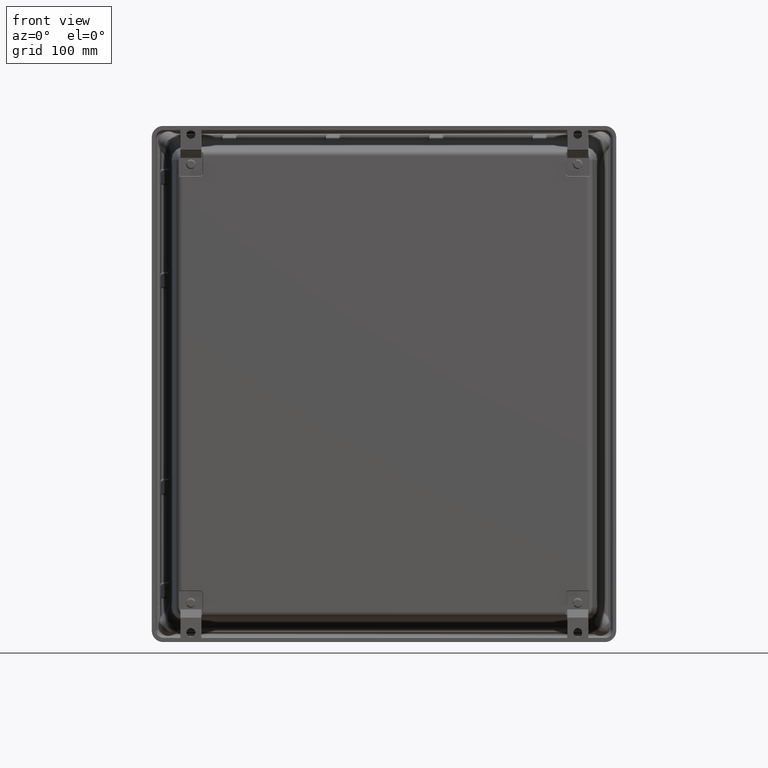
[diagram: clean part render]
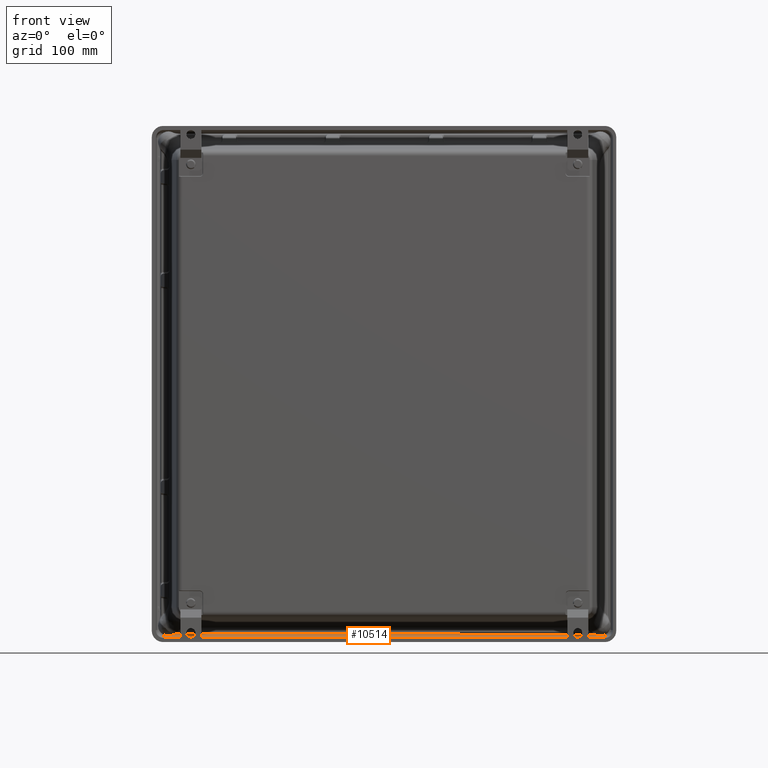
[diagram: same view with one face highlighted and labeled with its STEP entity id]
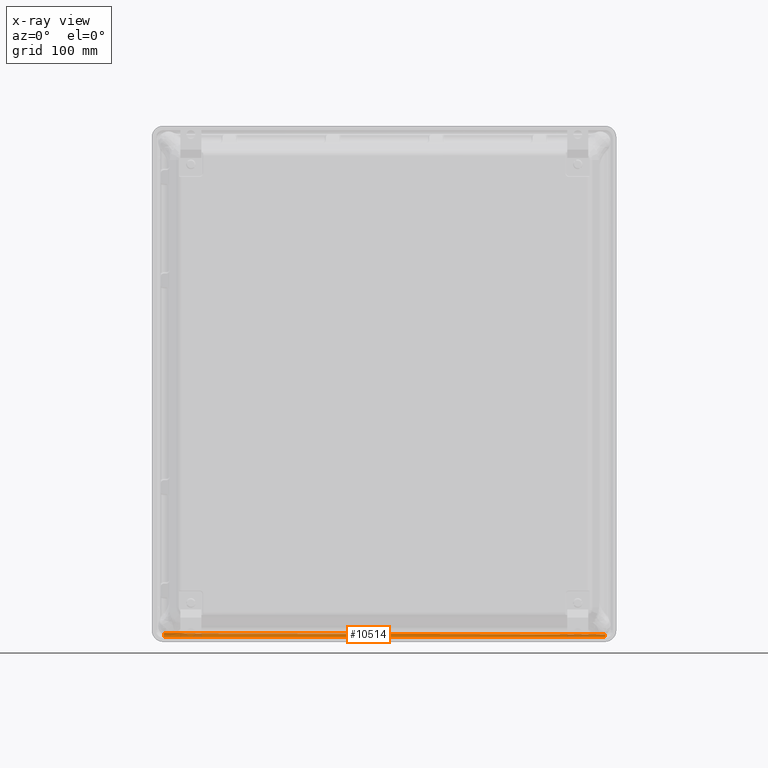
[diagram: x-ray of the same camera — body ghosted, the highlighted face saturated]
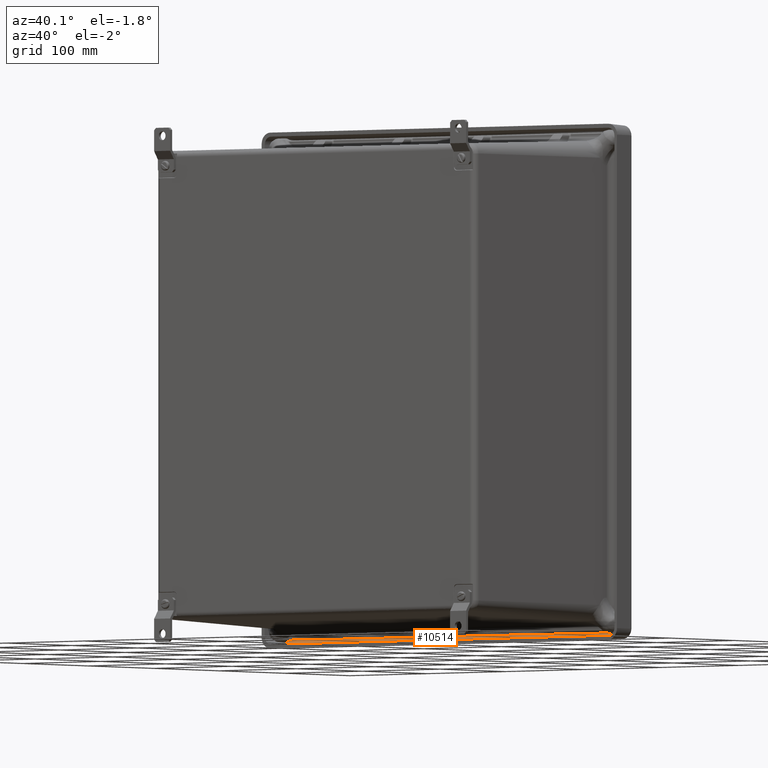
[diagram: same view with one face highlighted and labeled with its STEP entity id]
A machine part, front view. The second image highlights one B-rep face of the part: STEP entity #10514.
The next image is the same camera in x-ray: the body ghosted, the highlighted face saturated — about 7% of this face is hidden behind the body in this view.
A second angle (auxiliary view) of the same face is appended — the face is thin or edge-on in the first view.
In plain terms, the highlighted face is a freeform B-spline surface patch.
Its self-contained STEP definition (entity closure, byte-faithful):
#437 = CARTESIAN_POINT ( 'NONE',  ( 9.674721579208087600, -0.8733507263974081800, 7.163898185940192700 ) ) ;
#589 = CARTESIAN_POINT ( 'NONE',  ( 9.679666458007757200, -0.8743044704430864600, 3.030568104391742500 ) ) ;
#749 = CARTESIAN_POINT ( 'NONE',  ( 9.688845025283518100, -0.8749999591452020100, -1.504734751207767100 ) ) ;
#783 =( BOUNDED_SURFACE ( )  B_SPLINE_SURFACE ( 2, 3, ( 
 ( #19395, #30960, #45918, #23654 ),
 ( #1427, #27375, #5148, #31120 ),
 ( #8854, #34841, #12563, #38591 ) ),
 .UNSPECIFIED., .F., .F., .F. ) 
 B_SPLINE_SURFACE_WITH_KNOTS ( ( 3, 3 ),
 ( 4, 4 ),
 ( 0.0000000000000000000, 1.000000000000000000 ),
 ( 0.0000000000000000000, 1.000000000000000000 ),
 .UNSPECIFIED. ) 
 GEOMETRIC_REPRESENTATION_ITEM ( )  RATIONAL_B_SPLINE_SURFACE ( (
 ( 1.000000000000000000, 1.000000000000000000, 1.000000000000000000, 1.000000000000000000),
 ( 0.7253743710122877400, 0.7253743710122877400, 0.7253743710122877400, 0.7253743710122877400),
 ( 1.000000000000000000, 1.000000000000000000, 1.000000000000000000, 1.000000000000000000) ) ) 
 REPRESENTATION_ITEM ( '' )  SURFACE ( )  );
#1427 = CARTESIAN_POINT ( 'NONE',  ( 9.799143193127333600, -0.8749999999999997800, 8.532999999999987000 ) ) ;
#1811 = EDGE_CURVE ( 'NONE', #23958, #37862, #43674, .T. ) ;
#2136 = CARTESIAN_POINT ( 'NONE',  ( 9.710889488422854000, -0.8750000000000000000, -8.562999999999998800 ) ) ;
#2155 = CARTESIAN_POINT ( 'NONE',  ( 9.651395259702868000, -0.8750000000000000000, 7.835362064465877900 ) ) ;
#2173 = CARTESIAN_POINT ( 'NONE',  ( 9.688927230313172600, -0.8750000000000000000, -1.543071806843368900 ) ) ;
#2238 = CARTESIAN_POINT ( 'NONE',  ( 9.806890928141529100, -0.7271644091738989100, 8.532999999999995900 ) ) ;
#3557 = AXIS2_PLACEMENT_3D ( 'NONE', #16792, #42832, #20523 ) ;
#4161 = CARTESIAN_POINT ( 'NONE',  ( 9.675023764654836700, -0.8734213244040799400, 6.667898277114272100 ) ) ;
#4327 = CARTESIAN_POINT ( 'NONE',  ( 9.680841342050026600, -0.8744737418496132400, 2.369235831555447800 ) ) ;
#4483 = CARTESIAN_POINT ( 'NONE',  ( 9.688927230313172600, -0.8750000000000000000, -1.543071806843368900 ) ) ;
#5148 = CARTESIAN_POINT ( 'NONE',  ( 9.799143193127337200, -0.8749999999999997800, -2.864333333333335400 ) ) ;
#5710 = CARTESIAN_POINT ( 'NONE',  ( 9.651395259702868000, -0.8750000000000000000, 7.835362064465877900 ) ) ;
#6026 = CARTESIAN_POINT ( 'NONE',  ( 9.664802725234903100, -0.8744748197506325700, 7.763722118985570300 ) ) ;
#6716 = CARTESIAN_POINT ( 'NONE',  ( 9.806890928141529100, -0.7271644091738989100, 8.532999999999995900 ) ) ;
#7230 = B_SPLINE_CURVE_WITH_KNOTS ( 'NONE', 3,
 ( #27617, #31356, #9087, #35087 ),
 .UNSPECIFIED., .F., .F.,
 ( 4, 4 ),
 ( 0.0000000000000000000, 0.04080708560681496600 ),
 .UNSPECIFIED. ) ;
#7854 = CARTESIAN_POINT ( 'NONE',  ( 9.675598151799654500, -0.8735502738720507500, 6.006565187785438000 ) ) ;
#8003 = CARTESIAN_POINT ( 'NONE',  ( 9.682589969139968400, -0.8746855668853219500, 1.451213585537294100 ) ) ;
#8491 = B_SPLINE_CURVE_WITH_KNOTS ( 'NONE', 3,
 ( #43632, #32401, #28964, #6716 ),
 .UNSPECIFIED., .F., .F.,
 ( 4, 4 ),
 ( 0.0000000000000000000, 1.000000000000000000 ),
 .UNSPECIFIED. ) ;
#8534 = CARTESIAN_POINT ( 'NONE',  ( 9.799143193127338900, -0.8749999999999990000, -8.562999999999997100 ) ) ;
#8854 = CARTESIAN_POINT ( 'NONE',  ( 9.806890928141529100, -0.7271644091738992400, 8.532999999999987000 ) ) ;
#9087 = CARTESIAN_POINT ( 'NONE',  ( 9.651204275405213200, -0.8749999999999996700, 8.067908042977247600 ) ) ;
#9566 = CARTESIAN_POINT ( 'NONE',  ( 9.659001808308643100, -0.8749999999999997800, 7.799728294847875900 ) ) ;
#9716 = CARTESIAN_POINT ( 'NONE',  ( 9.674502262201835700, -0.8732985944575377700, 7.655003593373562500 ) ) ;
#10514 = ADVANCED_FACE ( 'NONE', ( #39162 ), #783, .T. ) ;
#10774 = EDGE_CURVE ( 'NONE', #28317, #17820, #21570, .T. ) ;
#11386 = CARTESIAN_POINT ( 'NONE',  ( 9.674548059404816800, -0.8733095329836884100, 7.535898145769595000 ) ) ;
#11542 = CARTESIAN_POINT ( 'NONE',  ( 9.676277860291461900, -0.8736973670719983000, 5.345232206825751400 ) ) ;
#11726 = CARTESIAN_POINT ( 'NONE',  ( 9.685029278192582000, -0.8748773461718063500, 0.2765015917332121500 ) ) ;
#11858 = EDGE_CURVE ( 'NONE', #41658, #37862, #8491, .T. ) ;
#12563 = CARTESIAN_POINT ( 'NONE',  ( 9.803762035155028100, -0.7868672439305937100, -2.864333333333335800 ) ) ;
#12700 = ORIENTED_EDGE ( 'NONE', *, *, #35142, .F. ) ;
#12889 =( BOUNDED_CURVE ( )  B_SPLINE_CURVE ( 2, ( #34539, #8534, #16016 ),
 .UNSPECIFIED., .F., .F. ) 
 B_SPLINE_CURVE_WITH_KNOTS ( ( 3, 3 ),
 ( 0.0000000000000000000, 1.000000000000000000 ),
 .UNSPECIFIED. ) 
 CURVE ( )  GEOMETRIC_REPRESENTATION_ITEM ( )  RATIONAL_B_SPLINE_CURVE ( ( 1.000000000000000000, 0.7253743710122913000, 1.000000000000000000 ) ) 
 REPRESENTATION_ITEM ( '' )  );
#13321 = CARTESIAN_POINT ( 'NONE',  ( 9.710889488422852300, -0.8750000000000000000, -6.223023935614454800 ) ) ;
#15332 = CARTESIAN_POINT ( 'NONE',  ( 9.677102575972409000, -0.8738634083923951800, 4.683899401672465300 ) ) ;
#15484 = CARTESIAN_POINT ( 'NONE',  ( 9.686276895047498700, -0.8749465472189796900, -0.3108543658223514300 ) ) ;
#16016 = CARTESIAN_POINT ( 'NONE',  ( 9.803762035155134700, -0.7868672439285989700, -8.562999999999997100 ) ) ;
#16792 = CARTESIAN_POINT ( 'NONE',  ( 9.651104720719814600, -0.7189999999999998600, 8.532999999999997700 ) ) ;
#17820 = VERTEX_POINT ( 'NONE', #45414 ) ;
#19034 = CARTESIAN_POINT ( 'NONE',  ( 9.678059351116260700, -0.8740400622686554900, 4.022566773712567200 ) ) ;
#19204 = CARTESIAN_POINT ( 'NONE',  ( 9.687539537138231800, -0.8749876866565430300, -0.8982102950095647300 ) ) ;
#19395 = CARTESIAN_POINT ( 'NONE',  ( 9.651104720719814600, -0.8750000000000000000, 8.532999999999987000 ) ) ;
#19562 = EDGE_CURVE ( 'NONE', #17820, #28212, #40897, .T. ) ;
#20523 = DIRECTION ( 'NONE',  ( 1.000000000000000000, 0.0000000000000000000, -7.004738445292974100E-015 ) ) ;
#21570 = B_SPLINE_CURVE_WITH_KNOTS ( 'NONE', 3,
 ( #41160, #37435, #11386, #44929, #22636, #437, #26386, #4161, #30125, #7854, #33844, #11542, #37592, #15332, #41324, #19034, #45080, #22816, #589, #26544, #4327, #30288, #8003, #34013, #11726, #37750, #15484, #41494, #19204, #45241, #22970, #749, #26695, #4483 ),
 .UNSPECIFIED., .F., .F.,
 ( 4, 3, 3, 3, 3, 3, 3, 3, 3, 3, 3, 4 ),
 ( 0.0000000000000000000, 0.003149600000959926400, 0.01574800011282160100, 0.04094480089375306100, 0.06614160152444000000, 0.09133840203007008400, 0.1165352024322089500, 0.1417320027498752400, 0.1864886270864253800, 0.2088669398634320800, 0.2312452527439484200, 0.2327058979216011800 ),
 .UNSPECIFIED. ) ;
#22636 = CARTESIAN_POINT ( 'NONE',  ( 9.674635709095593200, -0.8733304037517082300, 7.329231497971848700 ) ) ;
#22757 = ORIENTED_EDGE ( 'NONE', *, *, #10774, .F. ) ;
#22816 = CARTESIAN_POINT ( 'NONE',  ( 9.679095521622111100, -0.8742182236844058300, 3.361234269037999900 ) ) ;
#22970 = CARTESIAN_POINT ( 'NONE',  ( 9.688803895408835100, -0.8749998773265053000, -1.485566223448832700 ) ) ;
#23654 = CARTESIAN_POINT ( 'NONE',  ( 9.710889488422854000, -0.8750000000000000000, -8.562999999999997100 ) ) ;
#23958 = VERTEX_POINT ( 'NONE', #48175 ) ;
#24403 = CARTESIAN_POINT ( 'NONE',  ( 9.700809341381507500, -0.8750000000000000000, -3.883047871228911600 ) ) ;
#24860 = VERTEX_POINT ( 'NONE', #2155 ) ;
#25614 = CARTESIAN_POINT ( 'NONE',  ( 9.674515967656361700, -0.8733018698601992000, 7.618564805895868400 ) ) ;
#26386 = CARTESIAN_POINT ( 'NONE',  ( 9.674822307689600700, -0.8733742590661267600, 6.998564884206829500 ) ) ;
#26544 = CARTESIAN_POINT ( 'NONE',  ( 9.680237394392239700, -0.8743907172015911200, 2.699901940420180100 ) ) ;
#26695 = CARTESIAN_POINT ( 'NONE',  ( 9.688886118678393400, -0.8750000000000000000, -1.523903279045177200 ) ) ;
#27375 = CARTESIAN_POINT ( 'NONE',  ( 9.799143193127337200, -0.8749999999999997800, 2.834333333333325400 ) ) ;
#27617 = CARTESIAN_POINT ( 'NONE',  ( 9.651104720719814600, -0.8750000000000000000, 8.532999999999987000 ) ) ;
#28212 = VERTEX_POINT ( 'NONE', #2136 ) ;
#28317 = VERTEX_POINT ( 'NONE', #25614 ) ;
#28964 = CARTESIAN_POINT ( 'NONE',  ( 9.806890928141529100, -0.7271644091738992400, 2.834333333333325400 ) ) ;
#30125 = CARTESIAN_POINT ( 'NONE',  ( 9.675284632384308000, -0.8734812580834273600, 6.337231703762722800 ) ) ;
#30288 = CARTESIAN_POINT ( 'NONE',  ( 9.681471186949535100, -0.8745500399460437400, 2.038569772098886900 ) ) ;
#30960 = CARTESIAN_POINT ( 'NONE',  ( 9.651104720719816400, -0.8750000000000000000, 2.834333333333325400 ) ) ;
#31120 = CARTESIAN_POINT ( 'NONE',  ( 9.799143193127338900, -0.8749999999999997800, -8.562999999999997100 ) ) ;
#31356 = CARTESIAN_POINT ( 'NONE',  ( 9.651104720719814600, -0.8749999999999997800, 8.300454021488617300 ) ) ;
#31993 = CARTESIAN_POINT ( 'NONE',  ( 9.672545406133314900, -0.8736215934366541300, 7.691321448835614300 ) ) ;
#32401 = CARTESIAN_POINT ( 'NONE',  ( 9.803762035155028100, -0.7868672439305937100, -2.864333333333335800 ) ) ;
#33844 = CARTESIAN_POINT ( 'NONE',  ( 9.675911671213864200, -0.8736192896604243500, 5.675898673005840500 ) ) ;
#34013 = CARTESIAN_POINT ( 'NONE',  ( 9.683790908750829400, -0.8747993353150034200, 0.8638575487888546800 ) ) ;
#34539 = CARTESIAN_POINT ( 'NONE',  ( 9.710889488422854000, -0.8750000000000000000, -8.562999999999998800 ) ) ;
#34757 = EDGE_CURVE ( 'NONE', #23958, #24860, #7230, .T. ) ;
#34841 = CARTESIAN_POINT ( 'NONE',  ( 9.806890928141529100, -0.7271644091738992400, 2.834333333333325400 ) ) ;
#35087 = CARTESIAN_POINT ( 'NONE',  ( 9.651395259702868000, -0.8750000000000000000, 7.835362064465877900 ) ) ;
#35142 = EDGE_CURVE ( 'NONE', #28212, #41658, #12889, .T. ) ;
#35730 = CARTESIAN_POINT ( 'NONE',  ( 9.674515967656361700, -0.8733018698601992000, 7.618564805895868400 ) ) ;
#36679 = EDGE_LOOP ( 'NONE', ( #45657, #37931, #12700, #47648, #22757, #45519, #45960 ) ) ;
#37435 = CARTESIAN_POINT ( 'NONE',  ( 9.674531514059452800, -0.8733055852225725100, 7.577231475640597400 ) ) ;
#37592 = CARTESIAN_POINT ( 'NONE',  ( 9.676690218132556300, -0.8737803877323219200, 5.014565803750584500 ) ) ;
#37750 = CARTESIAN_POINT ( 'NONE',  ( 9.685648462933148300, -0.8749163516014482100, -0.01717639613369073600 ) ) ;
#37862 = VERTEX_POINT ( 'NONE', #2238 ) ;
#37931 = ORIENTED_EDGE ( 'NONE', *, *, #11858, .F. ) ;
#38591 = CARTESIAN_POINT ( 'NONE',  ( 9.803762035155029900, -0.7868672439305937100, -8.562999999999997100 ) ) ;
#39162 = FACE_OUTER_BOUND ( 'NONE', #36679, .T. ) ;
#39348 = CARTESIAN_POINT ( 'NONE',  ( 9.710889488422854000, -0.8750000000000000000, -8.562999999999998800 ) ) ;
#40189 = CARTESIAN_POINT ( 'NONE',  ( 9.803762035155134700, -0.7868672439285989700, -8.562999999999997100 ) ) ;
#40897 = B_SPLINE_CURVE_WITH_KNOTS ( 'NONE', 3,
 ( #2173, #24403, #13321, #39348 ),
 .UNSPECIFIED., .F., .F.,
 ( 4, 4 ),
 ( 0.5893818324077775300, 1.000000000000000000 ),
 .UNSPECIFIED. ) ;
#41160 = CARTESIAN_POINT ( 'NONE',  ( 9.674515967656361700, -0.8733018698601992000, 7.618564805895868400 ) ) ;
#41324 = CARTESIAN_POINT ( 'NONE',  ( 9.677561118148412700, -0.8739513543691998000, 4.353233056072176600 ) ) ;
#41494 = CARTESIAN_POINT ( 'NONE',  ( 9.686908216091369500, -0.8749671169377126700, -0.6045323297204714400 ) ) ;
#41658 = VERTEX_POINT ( 'NONE', #40189 ) ;
#42832 = DIRECTION ( 'NONE',  ( 7.014351370064854500E-015, 0.0000000000000000000, 1.000000000000000000 ) ) ;
#43632 = CARTESIAN_POINT ( 'NONE',  ( 9.803762035155134700, -0.7868672439285989700, -8.562999999999997100 ) ) ;
#43674 = CIRCLE ( 'NONE', #3557, 0.1560000000000001900 ) ;
#44929 = CARTESIAN_POINT ( 'NONE',  ( 9.674565589342911700, -0.8733137071372779600, 7.494564816351757300 ) ) ;
#45071 = EDGE_CURVE ( 'NONE', #24860, #28317, #45994, .T. ) ;
#45080 = CARTESIAN_POINT ( 'NONE',  ( 9.678557584082867000, -0.8741287701678897000, 3.691900492178533400 ) ) ;
#45241 = CARTESIAN_POINT ( 'NONE',  ( 9.688173751133019700, -0.8749986237952511700, -1.191888254914691900 ) ) ;
#45414 = CARTESIAN_POINT ( 'NONE',  ( 9.688927230313172600, -0.8750000000000000000, -1.543071806843368900 ) ) ;
#45519 = ORIENTED_EDGE ( 'NONE', *, *, #45071, .F. ) ;
#45657 = ORIENTED_EDGE ( 'NONE', *, *, #1811, .T. ) ;
#45918 = CARTESIAN_POINT ( 'NONE',  ( 9.710889488422852300, -0.8750000000000000000, -2.864333333333335800 ) ) ;
#45960 = ORIENTED_EDGE ( 'NONE', *, *, #34757, .F. ) ;
#45994 = B_SPLINE_CURVE_WITH_KNOTS ( 'NONE', 3,
 ( #5710, #9566, #6026, #31993, #9716, #35730 ),
 .UNSPECIFIED., .F., .F.,
 ( 4, 2, 4 ),
 ( -3.066631724805771300E-005, 0.002745801831055048100, 0.005522269979358153400 ),
 .UNSPECIFIED. ) ;
#47648 = ORIENTED_EDGE ( 'NONE', *, *, #19562, .F. ) ;
#48175 = CARTESIAN_POINT ( 'NONE',  ( 9.651104720719814600, -0.8750000000000000000, 8.532999999999987000 ) ) ;